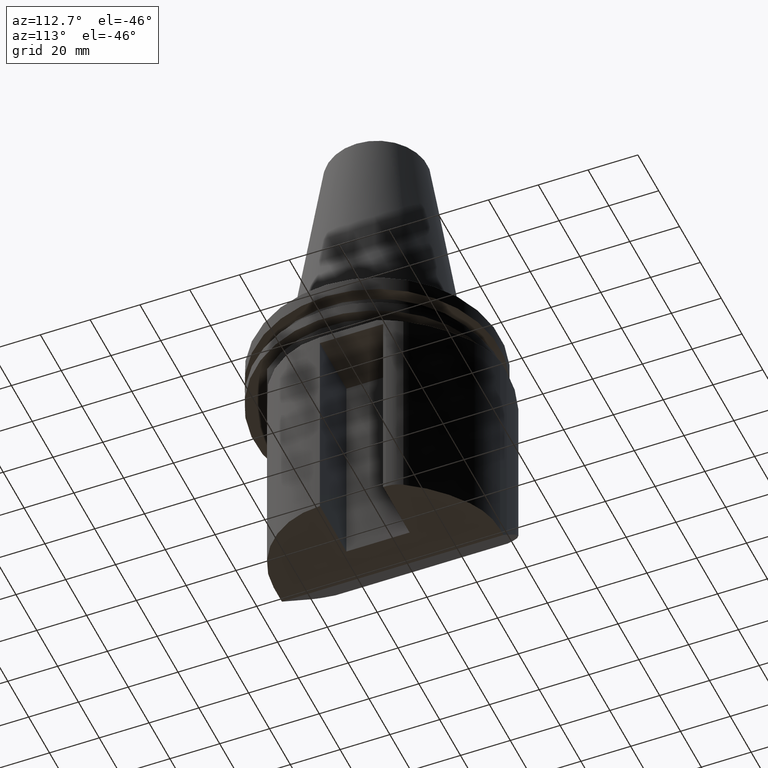
[diagram: clean part render]
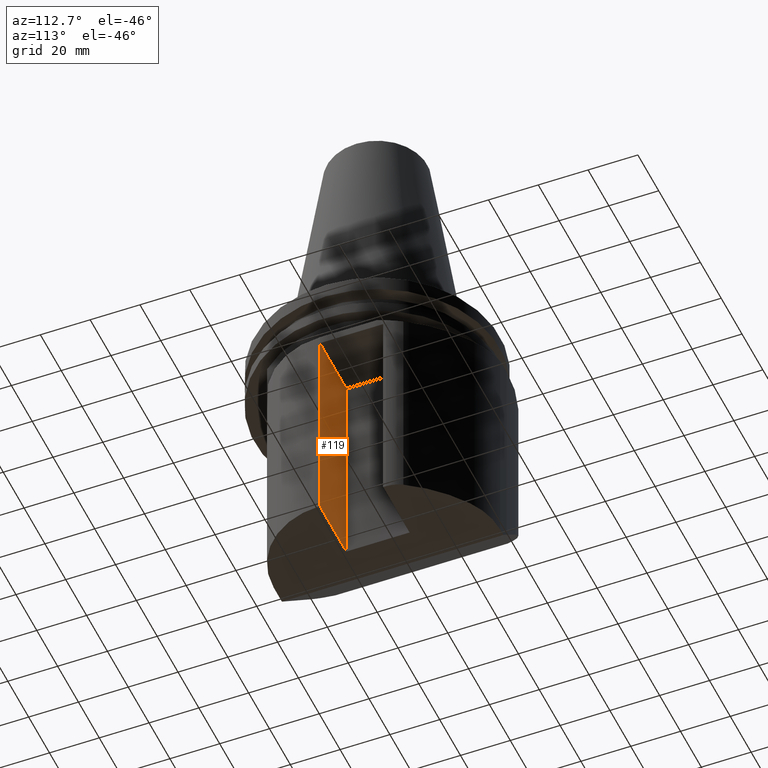
[diagram: same view with one face highlighted and labeled with its STEP entity id]
A machine part, auxiliary view. The second image highlights one B-rep face of the part: STEP entity #119.
In plain terms, the highlighted planar face has unit normal (0, -1, 0).
Its self-contained STEP definition (entity closure, byte-faithful):
#119=ADVANCED_FACE('Unnamed[1]',(#355),#356,.F.);
#149=EDGE_CURVE('Unnamed[1]',#402,#403,#404,.T.);
#151=EDGE_CURVE('Unnamed[1]',#402,#406,#407,.T.);
#280=EDGE_CURVE('Unnamed[1]',#391,#403,#588,.T.);
#292=EDGE_CURVE('Unnamed[1]',#391,#406,#601,.T.);
#355=FACE_OUTER_BOUND('',#668,.T.);
#356=PLANE('',#669);
#391=VERTEX_POINT('',#717);
#402=VERTEX_POINT('',#732);
#403=VERTEX_POINT('',#733);
#404=LINE('',#734,#735);
#406=VERTEX_POINT('',#738);
#407=LINE('',#739,#740);
#588=LINE('',#1027,#1028);
#601=LINE('',#1049,#1050);
#668=EDGE_LOOP('',(#1141,#1142,#1143,#1144));
#669=AXIS2_PLACEMENT_3D('',#1145,#1146,#1147);
#717=CARTESIAN_POINT('',(54.9999999999991,-6.92797071061492E-014,-38.1));
#732=CARTESIAN_POINT('',(29.5999999999996,-1.83621730865309E-013,-125.0));
#733=CARTESIAN_POINT('',(29.5999999999996,-1.78300640523014E-013,-38.1));
#734=CARTESIAN_POINT('',(29.5999999999996,-1.95255875457209E-013,-315.0));
#735=VECTOR('',#1203,1.0);
#738=CARTESIAN_POINT('',(54.9999999999991,9.27301293591479E-008,-125.0));
#739=CARTESIAN_POINT('',(5.52499999999966,-2.8695554866102E-013,-125.0));
#740=VECTOR('',#1204,1.0);
#1027=CARTESIAN_POINT('',(54.9999999999991,-6.92797071061492E-014,-38.1));
#1028=VECTOR('',#1418,1.0);
#1049=CARTESIAN_POINT('',(54.9999999999991,9.27301177250033E-008,-315.0));
#1050=VECTOR('',#1430,1.0);
#1141=ORIENTED_EDGE('',*,*,#151,.F.);
#1142=ORIENTED_EDGE('',*,*,#149,.T.);
#1143=ORIENTED_EDGE('',*,*,#280,.F.);
#1144=ORIENTED_EDGE('',*,*,#292,.T.);
#1145=CARTESIAN_POINT('',(42.2999999999994,-1.40745408748777E-013,-315.0));
#1146=DIRECTION('',(4.29216273294752E-015,-1.0,6.12323399573682E-017));
#1147=DIRECTION('',(-1.0,-4.29216273294752E-015,-1.22464679914735E-016));
#1203=DIRECTION('',(-1.22464679914735E-016,6.12323399573677E-017,1.0));
#1204=DIRECTION('',(1.0,4.29216273294752E-015,-1.69652472363112E-015));
#1418=DIRECTION('',(-1.0,-4.29216273294752E-015,-1.22464679914735E-016));
#1430=DIRECTION('',(1.22464679914735E-016,-6.12323399573677E-017,-1.0));